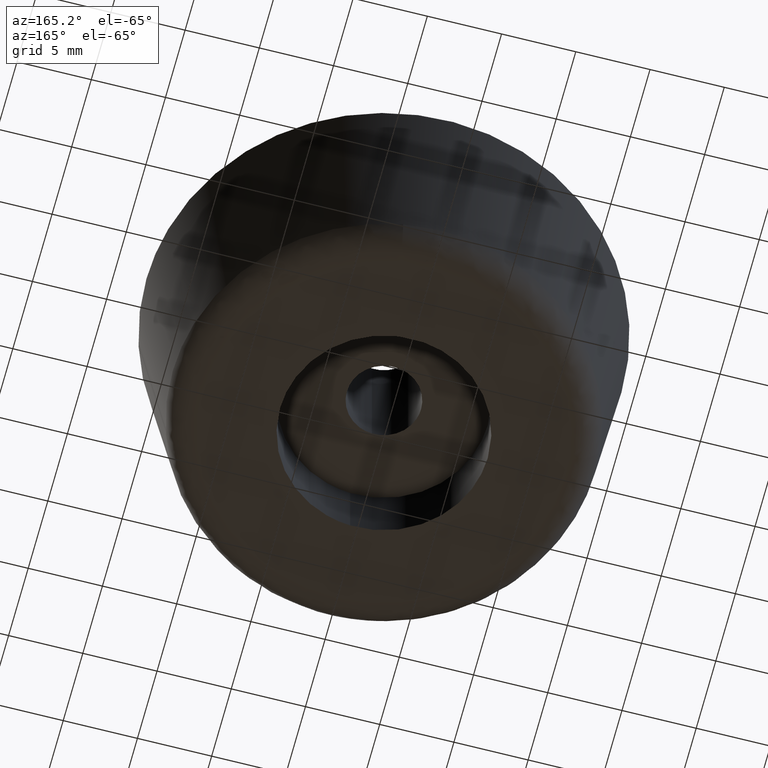
[diagram: clean part render]
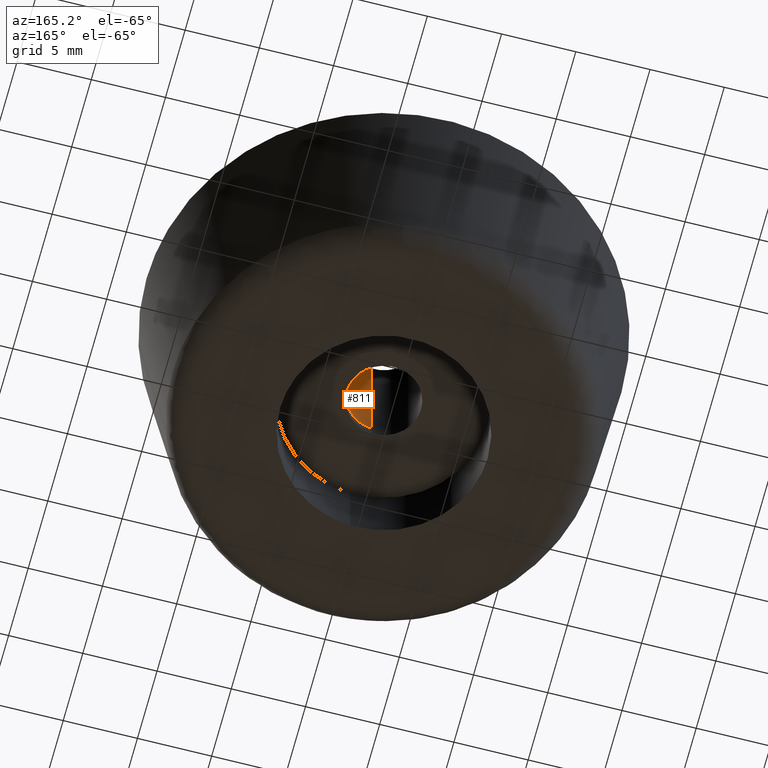
[diagram: same view with one face highlighted and labeled with its STEP entity id]
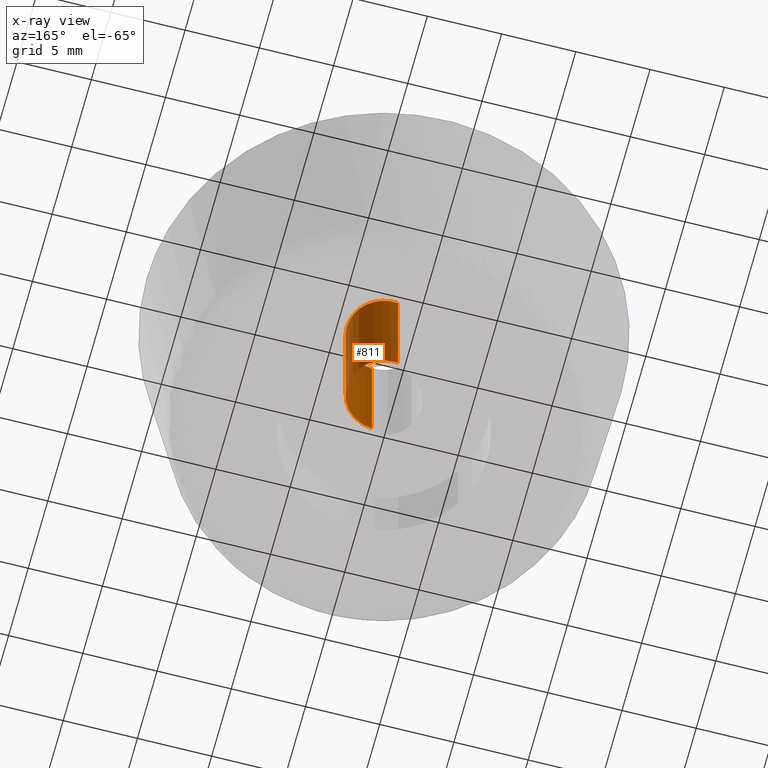
[diagram: x-ray of the same camera — body ghosted, the highlighted face saturated]
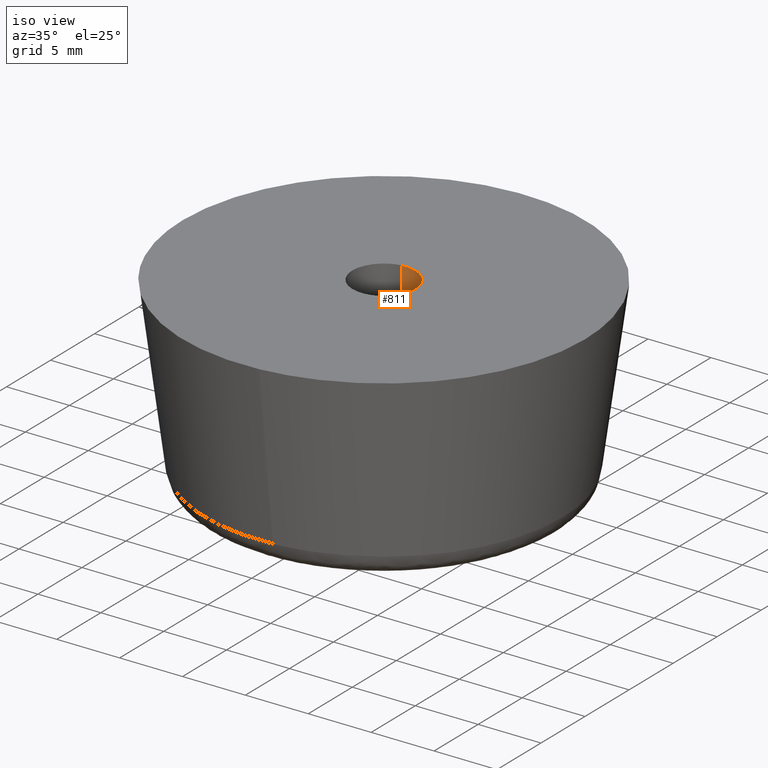
[diagram: same view with one face highlighted and labeled with its STEP entity id]
A machine part, auxiliary view. The second image highlights one B-rep face of the part: STEP entity #811.
The next image is the same camera in x-ray: the body ghosted, the highlighted face saturated — about 44% of this face is hidden behind the body in this view.
A second angle (iso view) of the same face is appended — the face is thin or edge-on in the first view.
In plain terms, the highlighted face is a freeform B-spline surface patch.
Its self-contained STEP definition (entity closure, byte-faithful):
#709=CARTESIAN_POINT('',(-0.295085586641896,2.482523815909166,15.229999999999999));
#710=CARTESIAN_POINT('',(-0.224036821594944,2.490969038621514,15.230000000000006));
#711=CARTESIAN_POINT('',(-0.152621348837143,2.495336996054667,15.230000000000000));
#712=CARTESIAN_POINT('',(2.342715647217524,2.647958344891809,15.230000000000000));
#713=CARTESIAN_POINT('',(2.495336996054667,0.152621348837143,15.230000000000000));
#714=CARTESIAN_POINT('',(2.647958344891809,-2.342715647217524,15.230000000000000));
#715=CARTESIAN_POINT('',(0.152621348837143,-2.495336996054667,15.230000000000000));
#716=CARTESIAN_POINT('',(-0.295085586641896,2.482523815909166,5.564250000000000));
#717=CARTESIAN_POINT('',(-0.224036821594944,2.490969038621514,5.564250000000000));
#718=CARTESIAN_POINT('',(-0.152621348837143,2.495336996054667,5.564250000000000));
#719=CARTESIAN_POINT('',(2.342715647217524,2.647958344891809,5.564250000000000));
#720=CARTESIAN_POINT('',(2.495336996054667,0.152621348837143,5.564250000000000));
#721=CARTESIAN_POINT('',(2.647958344891809,-2.342715647217524,5.564250000000000));
#722=CARTESIAN_POINT('',(0.152621348837143,-2.495336996054667,5.564250000000000));
#730=(BOUNDED_SURFACE()B_SPLINE_SURFACE(2,1,((#709,#716),(#710,#717),(#711,#718),(#712,#719),(#713,#720),(#714,#721),(#715,#722)),.UNSPECIFIED.,.F.,.F.,.U.)B_SPLINE_SURFACE_WITH_KNOTS((3,2,2,3),(2,2),(0.0,0.165685424949238,4.307821048680188,8.449956672411137),(0.0,9.665750000000003),.UNSPECIFIED.)GEOMETRIC_REPRESENTATION_ITEM()RATIONAL_B_SPLINE_SURFACE(((0.977505800795127,0.977505800795127),(0.988284271247462,0.988284271247462),(1.0,1.0),(0.707106781186548,0.707106781186548),(1.0,1.0),(0.707106781186548,0.707106781186548),(1.0,1.0)))REPRESENTATION_ITEM('')SURFACE());
#731=CARTESIAN_POINT('',(-0.295085586690287,2.482523815903414,15.0));
#732=VERTEX_POINT('',#731);
#733=CARTESIAN_POINT('',(2.500000000000000,0.0,15.0));
#734=VERTEX_POINT('',#733);
#735=CARTESIAN_POINT('',(-0.295085586690287,2.482523815903414,15.000000000000005));
#736=CARTESIAN_POINT('',(-0.148060299178678,2.500000000000000,15.000000000000005));
#737=CARTESIAN_POINT('',(0.0,2.500000000000000,15.0));
#738=CARTESIAN_POINT('',(2.500000000000000,2.500000000000000,14.999999999999995));
#739=CARTESIAN_POINT('',(2.500000000000000,0.0,15.0));
#747=(BOUNDED_CURVE()B_SPLINE_CURVE(2,(#735,#736,#737,#738,#739),.UNSPECIFIED.,.F.,.U.)B_SPLINE_CURVE_WITH_KNOTS((3,2,3),(0.229562473509056,0.250000000000000,0.500000000000000),.UNSPECIFIED.)CURVE()GEOMETRIC_REPRESENTATION_ITEM()RATIONAL_B_SPLINE_CURVE((0.956026754174972,0.976055948325928,1.0,0.707106781186548,1.0))REPRESENTATION_ITEM(''));
#748=EDGE_CURVE('',#732,#734,#747,.T.);
#749=ORIENTED_EDGE('',*,*,#748,.F.);
#750=CARTESIAN_POINT('',(-0.295085586690287,2.482523815903414,5.800000000000000));
#751=VERTEX_POINT('',#750);
#752=CARTESIAN_POINT('',(-0.295085586690287,2.482523815903414,15.0));
#753=CARTESIAN_POINT('',(-0.295085586690287,2.482523815903414,5.800000000000000));
#754=QUASI_UNIFORM_CURVE('',1,(#752,#753),.UNSPECIFIED.,.F.,.U.);
#755=EDGE_CURVE('',#732,#751,#754,.T.);
#756=ORIENTED_EDGE('',*,*,#755,.T.);
#757=CARTESIAN_POINT('',(2.500000000000000,0.0,5.800000000000000));
#758=VERTEX_POINT('',#757);
#759=CARTESIAN_POINT('',(-0.295085586690287,2.482523815903414,5.800000000000000));
#760=CARTESIAN_POINT('',(-0.148060299178678,2.500000000000000,5.800000000000000));
#761=CARTESIAN_POINT('',(0.0,2.500000000000000,5.800000000000000));
#762=CARTESIAN_POINT('',(2.500000000000000,2.500000000000000,5.800000000000001));
#763=CARTESIAN_POINT('',(2.500000000000000,0.0,5.800000000000000));
#771=(BOUNDED_CURVE()B_SPLINE_CURVE(2,(#759,#760,#761,#762,#763),.UNSPECIFIED.,.F.,.U.)B_SPLINE_CURVE_WITH_KNOTS((3,2,3),(0.229562473509056,0.250000000000000,0.500000000000000),.UNSPECIFIED.)CURVE()GEOMETRIC_REPRESENTATION_ITEM()RATIONAL_B_SPLINE_CURVE((0.956026754174972,0.976055948325928,1.0,0.707106781186548,1.0))REPRESENTATION_ITEM(''));
#772=EDGE_CURVE('',#751,#758,#771,.T.);
#773=ORIENTED_EDGE('',*,*,#772,.T.);
#774=CARTESIAN_POINT('',(0.152621348895174,-2.495336996051118,5.800000000000000));
#775=VERTEX_POINT('',#774);
#776=CARTESIAN_POINT('',(2.500000000000000,0.0,5.800000000000000));
#777=CARTESIAN_POINT('',(2.500000000000000,-2.351765167154643,5.800000000000002));
#778=CARTESIAN_POINT('',(0.152621348895174,-2.495336996051119,5.800000000000000));
#786=(BOUNDED_CURVE()B_SPLINE_CURVE(2,(#776,#777,#778),.UNSPECIFIED.,.F.,.U.)B_SPLINE_CURVE_WITH_KNOTS((3,3),(0.500000000000000,0.739332962233942),.UNSPECIFIED.)CURVE()GEOMETRIC_REPRESENTATION_ITEM()RATIONAL_B_SPLINE_CURVE((1.0,0.719603993292569,0.976072041656001))REPRESENTATION_ITEM(''));
#787=EDGE_CURVE('',#758,#775,#786,.T.);
#788=ORIENTED_EDGE('',*,*,#787,.T.);
#789=CARTESIAN_POINT('',(0.152621348895174,-2.495336996051118,15.0));
#790=VERTEX_POINT('',#789);
#791=CARTESIAN_POINT('',(0.152621348895174,-2.495336996051118,15.0));
#792=CARTESIAN_POINT('',(0.152621348895174,-2.495336996051118,5.800000000000000));
#793=QUASI_UNIFORM_CURVE('',1,(#791,#792),.UNSPECIFIED.,.F.,.U.);
#794=EDGE_CURVE('',#790,#775,#793,.T.);
#795=ORIENTED_EDGE('',*,*,#794,.F.);
#796=CARTESIAN_POINT('',(2.500000000000000,0.0,15.0));
#797=CARTESIAN_POINT('',(2.500000000000000,-2.351765167154643,15.000000000000002));
#798=CARTESIAN_POINT('',(0.152621348895174,-2.495336996051119,14.999999999999998));
#806=(BOUNDED_CURVE()B_SPLINE_CURVE(2,(#796,#797,#798),.UNSPECIFIED.,.F.,.U.)B_SPLINE_CURVE_WITH_KNOTS((3,3),(0.500000000000000,0.739332962233942),.UNSPECIFIED.)CURVE()GEOMETRIC_REPRESENTATION_ITEM()RATIONAL_B_SPLINE_CURVE((1.0,0.719603993292569,0.976072041656001))REPRESENTATION_ITEM(''));
#807=EDGE_CURVE('',#734,#790,#806,.T.);
#808=ORIENTED_EDGE('',*,*,#807,.F.);
#809=EDGE_LOOP('',(#749,#756,#773,#788,#795,#808));
#810=FACE_OUTER_BOUND('',#809,.T.);
#811=ADVANCED_FACE('',(#810),#730,.F.);